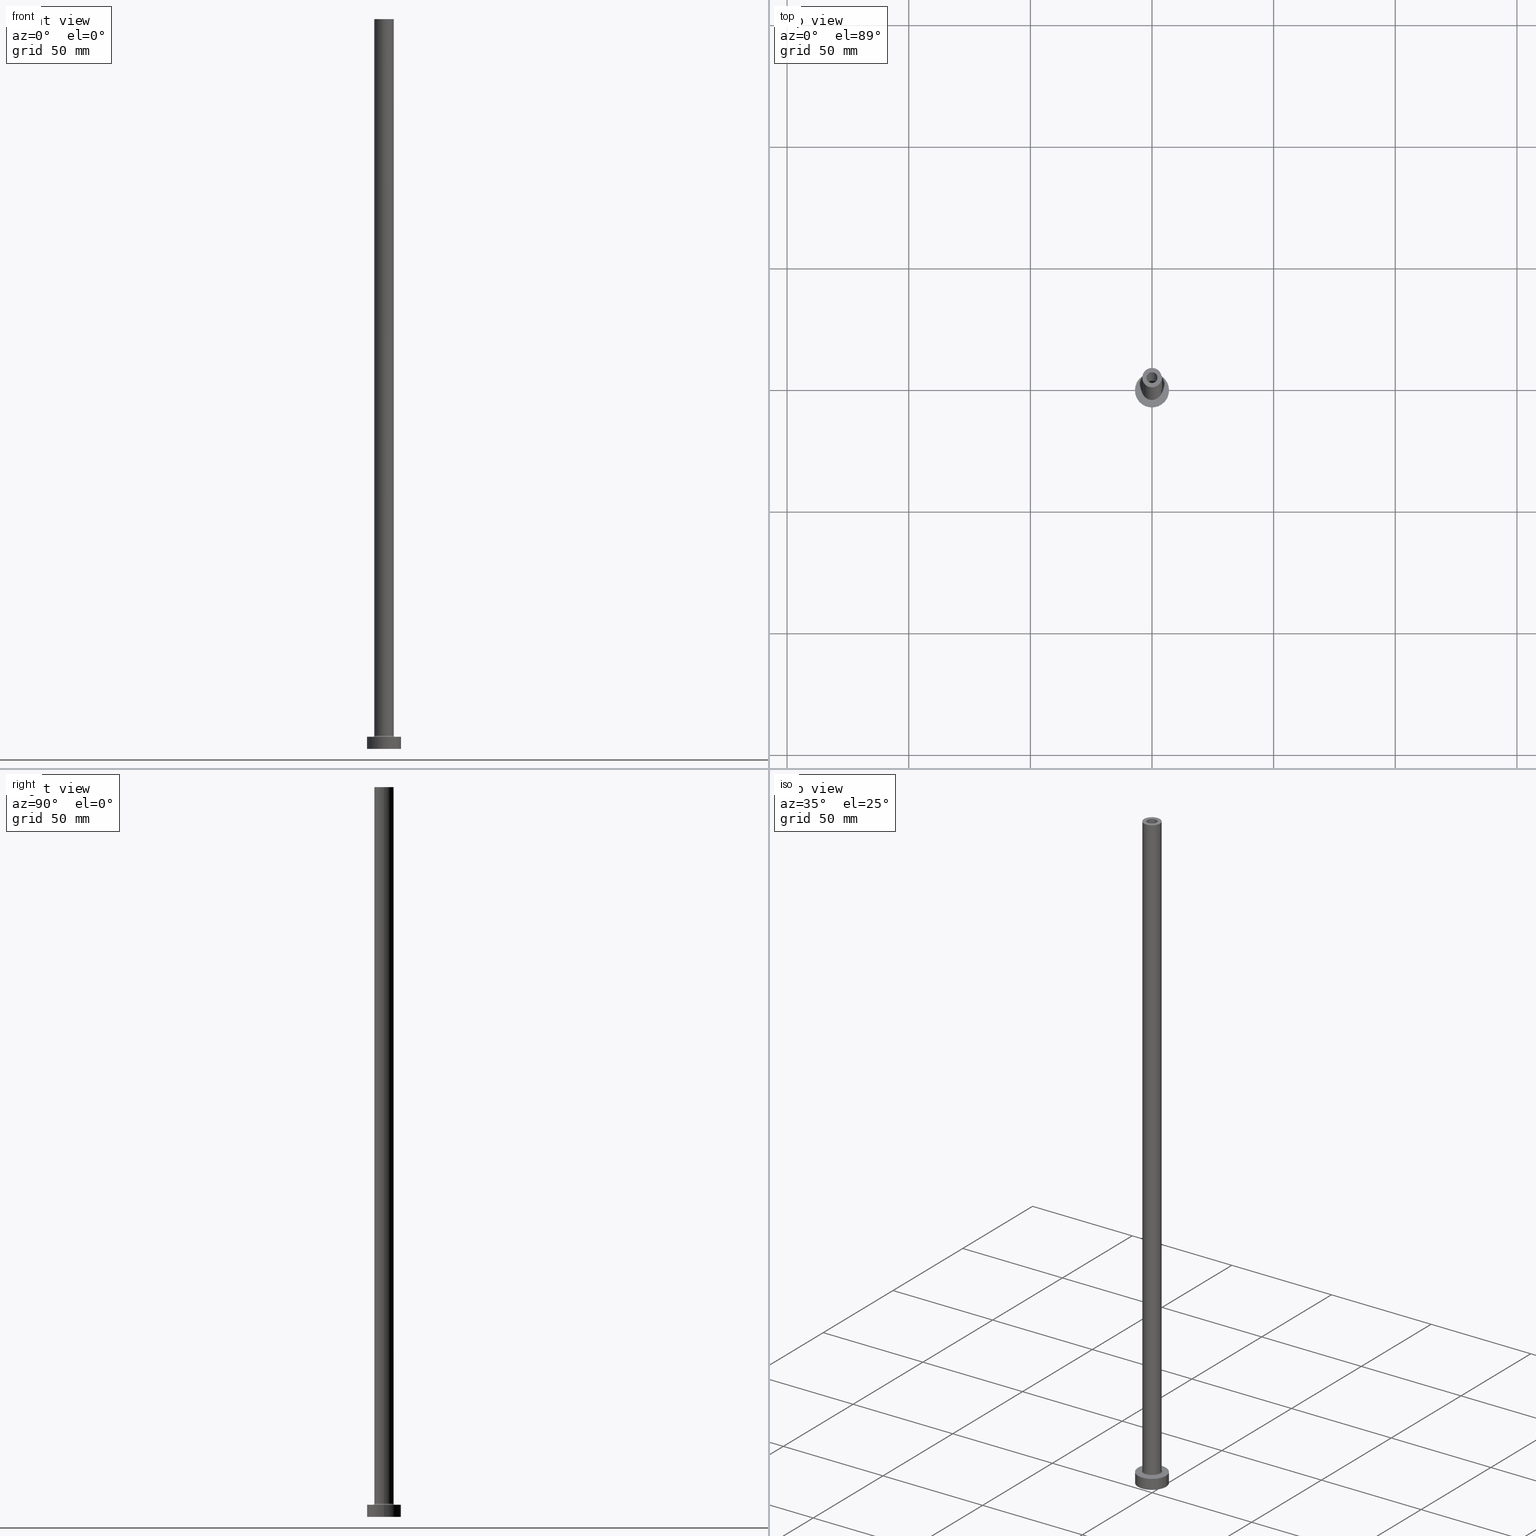
[diagram: canonical four-view strip — front | top / right | iso, engineering-drawing reading convention]
A machine part, canonical four-view strip (front | top / right | iso — engineering-drawing reading convention). The complete STEP part file that produces these views, byte-faithful:
ISO-10303-21;
HEADER;
FILE_DESCRIPTION (( 'STEP AP203' ),
    '1' );
FILE_NAME ('ff19.STEP',
    '2023-02-13T17:21:45',
    ( '' ),
    ( '' ),
    'SwSTEP 2.0',
    'SolidWorks 2019',
    '' );
FILE_SCHEMA (( 'CONFIG_CONTROL_DESIGN' ));
ENDSEC;

DATA;
#1 = FACE_BOUND ( 'NONE', #367, .T. ) ;
#2 = CARTESIAN_POINT ( 'NONE',  ( -2.250000000000000000, 0.000000000000000000, 300.0000000000000000 ) ) ;
#3 = AXIS2_PLACEMENT_3D ( 'NONE', #88, #458, #445 ) ;
#4 = LOCAL_TIME ( 18, 21, 45.00000000000000000, #95 ) ;
#5 = DIRECTION ( 'NONE',  ( 0.000000000000000000, 0.000000000000000000, 1.000000000000000000 ) ) ;
#6 = VERTEX_POINT ( 'NONE', #293 ) ;
#7 = CIRCLE ( 'NONE', #152, 2.250000000000000000 ) ;
#8 = ORIENTED_EDGE ( 'NONE', *, *, #148, .T. ) ;
#9 = DIRECTION ( 'NONE',  ( -0.000000000000000000, -0.000000000000000000, -1.000000000000000000 ) ) ;
#10 = CARTESIAN_POINT ( 'NONE',  ( -7.000000000000000000, 0.000000000000000000, 5.000000000000000000 ) ) ;
#11 = ADVANCED_BREP_SHAPE_REPRESENTATION ( 'ff19', ( #269, #397 ), #284 ) ;
#12 = AXIS2_PLACEMENT_3D ( 'NONE', #305, #61, #203 ) ;
#13 = APPROVAL_PERSON_ORGANIZATION ( #65, #251, #412 ) ;
#14 = VERTEX_POINT ( 'NONE', #120 ) ;
#15 = DIRECTION ( 'NONE',  ( -0.000000000000000000, -0.000000000000000000, -1.000000000000000000 ) ) ;
#16 = CC_DESIGN_PERSON_AND_ORGANIZATION_ASSIGNMENT ( #298, #447, ( #322 ) ) ;
#17 = DIRECTION ( 'NONE',  ( 1.000000000000000000, 0.000000000000000000, 0.000000000000000000 ) ) ;
#18 = CALENDAR_DATE ( 2023, 13, 2 ) ;
#19 = CARTESIAN_POINT ( 'NONE',  ( 0.000000000000000000, 0.000000000000000000, 261.7882250993908428 ) ) ;
#20 = ORIENTED_EDGE ( 'NONE', *, *, #375, .F. ) ;
#21 = DATE_AND_TIME ( #384, #146 ) ;
#22 = CARTESIAN_POINT ( 'NONE',  ( 4.500000000000000888, 0.000000000000000000, 5.000000000000002665 ) ) ;
#23 = AXIS2_PLACEMENT_3D ( 'NONE', #204, #126, #360 ) ;
#24 = DIRECTION ( 'NONE',  ( 0.000000000000000000, 0.000000000000000000, 1.000000000000000000 ) ) ;
#25 = DIRECTION ( 'NONE',  ( 0.000000000000000000, 0.000000000000000000, 1.000000000000000000 ) ) ;
#26 = ORIENTED_EDGE ( 'NONE', *, *, #112, .T. ) ;
#27 = ADVANCED_FACE ( 'NONE', ( #255, #404 ), #225, .F. ) ;
#28 = PERSON_AND_ORGANIZATION_ROLE ( 'creator' ) ;
#29 = ORIENTED_EDGE ( 'NONE', *, *, #200, .F. ) ;
#30 = DIRECTION ( 'NONE',  ( -0.000000000000000000, -0.000000000000000000, -1.000000000000000000 ) ) ;
#31 = FACE_OUTER_BOUND ( 'NONE', #461, .T. ) ;
#32 = AXIS2_PLACEMENT_3D ( 'NONE', #358, #137, #307 ) ;
#33 = ORIENTED_EDGE ( 'NONE', *, *, #349, .T. ) ;
#34 = DIRECTION ( 'NONE',  ( 1.000000000000000000, 0.000000000000000000, 0.000000000000000000 ) ) ;
#35 = EDGE_CURVE ( 'NONE', #446, #67, #281, .T. ) ;
#36 = DIRECTION ( 'NONE',  ( 1.000000000000000000, 0.000000000000000000, 0.000000000000000000 ) ) ;
#37 = EDGE_LOOP ( 'NONE', ( #406, #398 ) ) ;
#38 = DIRECTION ( 'NONE',  ( 1.000000000000000000, 0.000000000000000000, 0.000000000000000000 ) ) ;
#39 = EDGE_LOOP ( 'NONE', ( #258, #239, #219, #423 ) ) ;
#40 = CYLINDRICAL_SURFACE ( 'NONE', #437, 2.399999999999999911 ) ;
#41 = APPROVAL ( #226, 'NEUR�EN�' ) ;
#42 = AXIS2_PLACEMENT_3D ( 'NONE', #324, #5, #71 ) ;
#43 = ORIENTED_EDGE ( 'NONE', *, *, #165, .T. ) ;
#44 = PRODUCT_DEFINITION_SHAPE ( 'NONE', 'NONE',  #322 ) ;
#45 = ORIENTED_EDGE ( 'NONE', *, *, #278, .F. ) ;
#46 = PERSON_AND_ORGANIZATION ( #249, #304 ) ;
#47 = ADVANCED_FACE ( 'NONE', ( #383 ), #40, .F. ) ;
#48 = DIRECTION ( 'NONE',  ( 0.000000000000000000, 0.000000000000000000, 1.000000000000000000 ) ) ;
#49 = CIRCLE ( 'NONE', #430, 7.000000000000000000 ) ;
#50 = DIRECTION ( 'NONE',  ( 1.000000000000000000, 0.000000000000000000, 0.000000000000000000 ) ) ;
#51 = VERTEX_POINT ( 'NONE', #410 ) ;
#52 = ADVANCED_FACE ( 'NONE', ( #121 ), #201, .F. ) ;
#53 = DIRECTION ( 'NONE',  ( -1.000000000000000000, 0.000000000000000000, 0.000000000000000000 ) ) ;
#54 = DIRECTION ( 'NONE',  ( 0.000000000000000000, 0.000000000000000000, 1.000000000000000000 ) ) ;
#55 = ORIENTED_EDGE ( 'NONE', *, *, #192, .F. ) ;
#56 = CC_DESIGN_PERSON_AND_ORGANIZATION_ASSIGNMENT ( #46, #28, ( #295 ) ) ;
#57 = VECTOR ( 'NONE', #240, 1000.000000000000000 ) ;
#58 = AXIS2_PLACEMENT_3D ( 'NONE', #215, #147, #208 ) ;
#59 = VERTEX_POINT ( 'NONE', #10 ) ;
#60 = DIRECTION ( 'NONE',  ( 0.000000000000000000, 0.000000000000000000, -1.000000000000000000 ) ) ;
#61 = DIRECTION ( 'NONE',  ( -0.000000000000000000, -0.000000000000000000, -1.000000000000000000 ) ) ;
#62 = CIRCLE ( 'NONE', #420, 2.399999999999999911 ) ;
#63 = AXIS2_PLACEMENT_3D ( 'NONE', #460, #276, #442 ) ;
#64 = EDGE_CURVE ( 'NONE', #242, #429, #282, .T. ) ;
#65 = PERSON_AND_ORGANIZATION ( #249, #304 ) ;
#66 = CARTESIAN_POINT ( 'NONE',  ( -4.500000000000000888, 5.510910596163089556E-16, 5.500000000000005329 ) ) ;
#67 = VERTEX_POINT ( 'NONE', #238 ) ;
#68 = DIRECTION ( 'NONE',  ( 0.000000000000000000, 0.000000000000000000, -1.000000000000000000 ) ) ;
#69 = DIRECTION ( 'NONE',  ( 0.000000000000000000, 0.000000000000000000, -1.000000000000000000 ) ) ;
#70 = DIRECTION ( 'NONE',  ( -1.000000000000000000, 0.000000000000000000, 0.000000000000000000 ) ) ;
#71 = DIRECTION ( 'NONE',  ( 1.000000000000000000, 0.000000000000000000, 0.000000000000000000 ) ) ;
#72 = CIRCLE ( 'NONE', #172, 2.250000000000000000 ) ;
#73 = DIRECTION ( 'NONE',  ( 0.000000000000000000, 0.000000000000000000, 1.000000000000000000 ) ) ;
#74 = ORIENTED_EDGE ( 'NONE', *, *, #93, .F. ) ;
#75 = DIRECTION ( 'NONE',  ( 1.000000000000000000, 0.000000000000000000, 0.000000000000000000 ) ) ;
#76 = EDGE_CURVE ( 'NONE', #67, #6, #378, .T. ) ;
#77 = ORIENTED_EDGE ( 'NONE', *, *, #256, .F. ) ;
#78 = ORIENTED_EDGE ( 'NONE', *, *, #127, .F. ) ;
#79 = FACE_OUTER_BOUND ( 'NONE', #433, .T. ) ;
#80 = AXIS2_PLACEMENT_3D ( 'NONE', #247, #48, #399 ) ;
#81 = EDGE_LOOP ( 'NONE', ( #139, #426, #277, #113 ) ) ;
#82 = CALENDAR_DATE ( 2023, 13, 2 ) ;
#83 = AXIS2_PLACEMENT_3D ( 'NONE', #299, #157, #381 ) ;
#84 = CC_DESIGN_APPROVAL ( #436, ( #295 ) ) ;
#85 = VERTEX_POINT ( 'NONE', #133 ) ;
#86 = CARTESIAN_POINT ( 'NONE',  ( 0.000000000000000000, 0.000000000000000000, 0.000000000000000000 ) ) ;
#87 = DIRECTION ( 'NONE',  ( 1.000000000000000000, 0.000000000000000000, -0.000000000000000000 ) ) ;
#88 = CARTESIAN_POINT ( 'NONE',  ( 0.000000000000000000, 0.000000000000000000, 5.500000000000005329 ) ) ;
#89 = VERTEX_POINT ( 'NONE', #418 ) ;
#90 = VECTOR ( 'NONE', #9, 1000.000000000000000 ) ;
#91 = FACE_BOUND ( 'NONE', #156, .T. ) ;
#92 = VERTEX_POINT ( 'NONE', #177 ) ;
#93 = EDGE_CURVE ( 'NONE', #89, #333, #438, .T. ) ;
#94 = ORIENTED_EDGE ( 'NONE', *, *, #35, .T. ) ;
#95 = COORDINATED_UNIVERSAL_TIME_OFFSET ( 1, 0, .AHEAD. ) ;
#96 = CIRCLE ( 'NONE', #12, 2.399999999999999911 ) ;
#97 = APPROVAL_PERSON_ORGANIZATION ( #400, #436, #394 ) ;
#98 = DIRECTION ( 'NONE',  ( 1.000000000000000000, 0.000000000000000000, 0.000000000000000000 ) ) ;
#99 = ORIENTED_EDGE ( 'NONE', *, *, #128, .T. ) ;
#100 = LINE ( 'NONE', #283, #270 ) ;
#101 = ORIENTED_EDGE ( 'NONE', *, *, #328, .F. ) ;
#102 = COORDINATED_UNIVERSAL_TIME_OFFSET ( 1, 0, .AHEAD. ) ;
#103 = CC_DESIGN_DATE_AND_TIME_ASSIGNMENT ( #21, #300, ( #331 ) ) ;
#104 = CARTESIAN_POINT ( 'NONE',  ( 0.000000000000000000, 0.000000000000000000, 5.000000000000000000 ) ) ;
#105 = CARTESIAN_POINT ( 'NONE',  ( 0.000000000000000000, 0.000000000000000000, 5.000000000000000000 ) ) ;
#106 = CYLINDRICAL_SURFACE ( 'NONE', #302, 2.250000000000000000 ) ;
#107 = AXIS2_PLACEMENT_3D ( 'NONE', #19, #60, #230 ) ;
#108 = DIRECTION ( 'NONE',  ( 1.000000000000000000, 0.000000000000000000, 0.000000000000000000 ) ) ;
#109 = EDGE_LOOP ( 'NONE', ( #178, #233, #267, #229 ) ) ;
#110 = DIRECTION ( 'NONE',  ( 0.000000000000000000, 0.000000000000000000, -1.000000000000000000 ) ) ;
#111 = ORIENTED_EDGE ( 'NONE', *, *, #248, .T. ) ;
#112 = EDGE_CURVE ( 'NONE', #6, #67, #7, .T. ) ;
#113 = ORIENTED_EDGE ( 'NONE', *, *, #162, .F. ) ;
#114 = CIRCLE ( 'NONE', #209, 2.250000000000000000 ) ;
#115 = AXIS2_PLACEMENT_3D ( 'NONE', #368, #15, #53 ) ;
#116 = PLANE ( 'NONE',  #80 ) ;
#117 = FACE_OUTER_BOUND ( 'NONE', #312, .T. ) ;
#118 = LOCAL_TIME ( 18, 21, 45.00000000000000000, #198 ) ;
#119 = ADVANCED_FACE ( 'NONE', ( #145 ), #285, .T. ) ;
#120 = CARTESIAN_POINT ( 'NONE',  ( 7.000000000000000000, 8.572527594031473190E-16, 5.000000000000000000 ) ) ;
#121 = FACE_OUTER_BOUND ( 'NONE', #109, .T. ) ;
#122 = CYLINDRICAL_SURFACE ( 'NONE', #294, 4.000000000000000000 ) ;
#123 = ORIENTED_EDGE ( 'NONE', *, *, #187, .F. ) ;
#124 = CIRCLE ( 'NONE', #369, 2.399999999999999911 ) ;
#125 = CARTESIAN_POINT ( 'NONE',  ( 0.000000000000000000, 0.000000000000000000, 5.000000000000000000 ) ) ;
#126 = DIRECTION ( 'NONE',  ( 0.000000000000000000, 0.000000000000000000, 1.000000000000000000 ) ) ;
#127 = EDGE_CURVE ( 'NONE', #150, #446, #72, .T. ) ;
#128 = EDGE_CURVE ( 'NONE', #333, #318, #289, .T. ) ;
#129 = PERSON_AND_ORGANIZATION ( #249, #304 ) ;
#130 = CARTESIAN_POINT ( 'NONE',  ( 0.000000000000000000, 0.000000000000000000, 0.000000000000000000 ) ) ;
#131 = ORIENTED_EDGE ( 'NONE', *, *, #377, .T. ) ;
#132 = COORDINATED_UNIVERSAL_TIME_OFFSET ( 1, 0, .AHEAD. ) ;
#133 = CARTESIAN_POINT ( 'NONE',  ( 2.399999999999999911, 2.939152317953647106E-16, 0.000000000000000000 ) ) ;
#134 = ORIENTED_EDGE ( 'NONE', *, *, #35, .F. ) ;
#135 = PLANE ( 'NONE',  #253 ) ;
#136 = AXIS2_PLACEMENT_3D ( 'NONE', #425, #347, #36 ) ;
#137 = DIRECTION ( 'NONE',  ( -0.000000000000000000, -0.000000000000000000, -1.000000000000000000 ) ) ;
#138 = ORIENTED_EDGE ( 'NONE', *, *, #328, .T. ) ;
#139 = ORIENTED_EDGE ( 'NONE', *, *, #335, .F. ) ;
#140 = ADVANCED_FACE ( 'NONE', ( #245, #186 ), #116, .T. ) ;
#141 = CARTESIAN_POINT ( 'NONE',  ( 0.000000000000000000, 0.000000000000000000, 300.0000000000000000 ) ) ;
#142 = ORIENTED_EDGE ( 'NONE', *, *, #375, .T. ) ;
#143 = DIRECTION ( 'NONE',  ( 0.000000000000000000, 0.000000000000000000, 1.000000000000000000 ) ) ;
#144 = AXIS2_PLACEMENT_3D ( 'NONE', #352, #411, #296 ) ;
#145 = FACE_OUTER_BOUND ( 'NONE', #39, .T. ) ;
#146 = LOCAL_TIME ( 18, 21, 45.00000000000000000, #132 ) ;
#147 = DIRECTION ( 'NONE',  ( 0.000000000000000000, 0.000000000000000000, 1.000000000000000000 ) ) ;
#148 = EDGE_CURVE ( 'NONE', #429, #242, #338, .T. ) ;
#149 = ORIENTED_EDGE ( 'NONE', *, *, #182, .F. ) ;
#150 = VERTEX_POINT ( 'NONE', #350 ) ;
#151 = PRODUCT_RELATED_PRODUCT_CATEGORY ( 'detail', '', ( #189 ) ) ;
#152 = AXIS2_PLACEMENT_3D ( 'NONE', #205, #456, #108 ) ;
#153 = AXIS2_PLACEMENT_3D ( 'NONE', #271, #241, #173 ) ;
#154 = CC_DESIGN_SECURITY_CLASSIFICATION ( #331, ( #295 ) ) ;
#155 = EDGE_CURVE ( 'NONE', #89, #92, #195, .T. ) ;
#156 = EDGE_LOOP ( 'NONE', ( #246, #101 ) ) ;
#157 = DIRECTION ( 'NONE',  ( 0.000000000000000000, -1.000000000000000000, 0.000000000000000000 ) ) ;
#158 = FACE_OUTER_BOUND ( 'NONE', #81, .T. ) ;
#159 = APPROVAL_DATE_TIME ( #170, #41 ) ;
#160 = ORIENTED_EDGE ( 'NONE', *, *, #373, .T. ) ;
#161 = CALENDAR_DATE ( 2023, 13, 2 ) ;
#162 = EDGE_CURVE ( 'NONE', #393, #89, #274, .T. ) ;
#163 = CLOSED_SHELL ( 'NONE', ( #452, #47, #52, #292, #439, #455, #140, #234, #119, #343, #391, #303, #27, #332 ) ) ;
#164 = CARTESIAN_POINT ( 'NONE',  ( -2.399999999999999911, 0.000000000000000000, 255.0000000000000000 ) ) ;
#165 = EDGE_CURVE ( 'NONE', #92, #318, #356, .T. ) ;
#166 = CYLINDRICAL_SURFACE ( 'NONE', #107, 2.399999999999999911 ) ;
#167 = EDGE_LOOP ( 'NONE', ( #351, #217, #169, #134 ) ) ;
#168 = PERSON_AND_ORGANIZATION_ROLE ( 'design_owner' ) ;
#169 = ORIENTED_EDGE ( 'NONE', *, *, #76, .F. ) ;
#170 = DATE_AND_TIME ( #18, #4 ) ;
#171 = DIRECTION ( 'NONE',  ( 1.000000000000000000, 0.000000000000000000, 0.000000000000000000 ) ) ;
#172 = AXIS2_PLACEMENT_3D ( 'NONE', #386, #25, #272 ) ;
#173 = DIRECTION ( 'NONE',  ( 1.000000000000000000, 0.000000000000000000, 0.000000000000000000 ) ) ;
#174 = CIRCLE ( 'NONE', #364, 4.000000000000000000 ) ;
#175 = ORIENTED_EDGE ( 'NONE', *, *, #200, .T. ) ;
#176 = FACE_OUTER_BOUND ( 'NONE', #167, .T. ) ;
#177 = CARTESIAN_POINT ( 'NONE',  ( 4.000000000000000000, 4.898587196589412829E-16, 5.500000000000005329 ) ) ;
#178 = ORIENTED_EDGE ( 'NONE', *, *, #155, .F. ) ;
#179 = LINE ( 'NONE', #422, #222 ) ;
#180 = CIRCLE ( 'NONE', #188, 2.399999999999999911 ) ;
#181 = VECTOR ( 'NONE', #315, 1000.000000000000000 ) ;
#182 = EDGE_CURVE ( 'NONE', #252, #51, #268, .T. ) ;
#183 = CARTESIAN_POINT ( 'NONE',  ( 0.000000000000000000, 0.000000000000000000, 300.0000000000000000 ) ) ;
#184 = ORIENTED_EDGE ( 'NONE', *, *, #64, .T. ) ;
#185 = CC_DESIGN_PERSON_AND_ORGANIZATION_ASSIGNMENT ( #353, #314, ( #331 ) ) ;
#186 = FACE_OUTER_BOUND ( 'NONE', #37, .T. ) ;
#187 = EDGE_CURVE ( 'NONE', #14, #59, #409, .T. ) ;
#188 = AXIS2_PLACEMENT_3D ( 'NONE', #196, #262, #264 ) ;
#189 = PRODUCT ( 'ff19', 'ff19', '', ( #291 ) ) ;
#190 =( NAMED_UNIT ( * ) PLANE_ANGLE_UNIT ( ) SI_UNIT ( $, .RADIAN. ) );
#191 = VERTEX_POINT ( 'NONE', #297 ) ;
#192 = EDGE_CURVE ( 'NONE', #446, #150, #114, .T. ) ;
#193 = DIRECTION ( 'NONE',  ( 1.000000000000000000, 0.000000000000000000, -0.000000000000000000 ) ) ;
#194 = DIRECTION ( 'NONE',  ( 1.000000000000000000, 0.000000000000000000, 0.000000000000000000 ) ) ;
#195 = CIRCLE ( 'NONE', #3, 4.000000000000000000 ) ;
#196 = CARTESIAN_POINT ( 'NONE',  ( 0.000000000000000000, 0.000000000000000000, 255.0000000000000000 ) ) ;
#197 = FACE_OUTER_BOUND ( 'NONE', #457, .T. ) ;
#198 = COORDINATED_UNIVERSAL_TIME_OFFSET ( 1, 0, .AHEAD. ) ;
#199 = DIRECTION ( 'NONE',  ( -0.000000000000000000, -0.000000000000000000, -1.000000000000000000 ) ) ;
#200 = EDGE_CURVE ( 'NONE', #14, #242, #213, .T. ) ;
#201 = TOROIDAL_SURFACE ( 'NONE', #23, 4.500000000000000888, 0.5000000000000000000 ) ;
#202 = CIRCLE ( 'NONE', #42, 4.000000000000000000 ) ;
#203 = DIRECTION ( 'NONE',  ( 1.000000000000000000, 0.000000000000000000, 0.000000000000000000 ) ) ;
#204 = CARTESIAN_POINT ( 'NONE',  ( 0.000000000000000000, 0.000000000000000000, 5.500000000000005329 ) ) ;
#205 = CARTESIAN_POINT ( 'NONE',  ( 0.000000000000000000, 0.000000000000000000, 255.0000000000000000 ) ) ;
#206 = ORIENTED_EDGE ( 'NONE', *, *, #112, .F. ) ;
#207 = APPROVAL_ROLE ( '' ) ;
#208 = DIRECTION ( 'NONE',  ( 1.000000000000000000, 0.000000000000000000, 0.000000000000000000 ) ) ;
#209 = AXIS2_PLACEMENT_3D ( 'NONE', #231, #336, #75 ) ;
#210 = CARTESIAN_POINT ( 'NONE',  ( -2.250000000000000000, 0.000000000000000000, 300.0000000000000000 ) ) ;
#211 = DIRECTION ( 'NONE',  ( -0.000000000000000000, -0.000000000000000000, -1.000000000000000000 ) ) ;
#212 = VERTEX_POINT ( 'NONE', #319 ) ;
#213 = LINE ( 'NONE', #354, #330 ) ;
#214 = ORIENTED_EDGE ( 'NONE', *, *, #335, .T. ) ;
#215 = CARTESIAN_POINT ( 'NONE',  ( 0.000000000000000000, 0.000000000000000000, 5.500000000000005329 ) ) ;
#216 = CARTESIAN_POINT ( 'NONE',  ( -7.000000000000000000, 0.000000000000000000, 0.000000000000000000 ) ) ;
#217 = ORIENTED_EDGE ( 'NONE', *, *, #256, .T. ) ;
#218 = APPROVAL_DATE_TIME ( #321, #436 ) ;
#219 = ORIENTED_EDGE ( 'NONE', *, *, #162, .T. ) ;
#220 = EDGE_CURVE ( 'NONE', #51, #85, #124, .T. ) ;
#221 = CARTESIAN_POINT ( 'NONE',  ( 0.000000000000000000, 0.000000000000000000, 0.000000000000000000 ) ) ;
#222 = VECTOR ( 'NONE', #69, 1000.000000000000000 ) ;
#223 = CARTESIAN_POINT ( 'NONE',  ( -4.000000000000000000, 0.000000000000000000, 300.0000000000000000 ) ) ;
#224 = CYLINDRICAL_SURFACE ( 'NONE', #115, 7.000000000000000000 ) ;
#225 = PLANE ( 'NONE',  #323 ) ;
#226 = APPROVAL_STATUS ( 'not_yet_approved' ) ;
#227 = CC_DESIGN_APPROVAL ( #251, ( #331 ) ) ;
#228 = DIRECTION ( 'NONE',  ( -1.000000000000000000, 0.000000000000000000, 0.000000000000000000 ) ) ;
#229 = ORIENTED_EDGE ( 'NONE', *, *, #165, .F. ) ;
#230 = DIRECTION ( 'NONE',  ( -1.000000000000000000, 0.000000000000000000, 0.000000000000000000 ) ) ;
#231 = CARTESIAN_POINT ( 'NONE',  ( 0.000000000000000000, 0.000000000000000000, 300.0000000000000000 ) ) ;
#232 = CIRCLE ( 'NONE', #389, 4.000000000000000000 ) ;
#233 = ORIENTED_EDGE ( 'NONE', *, *, #93, .T. ) ;
#234 = ADVANCED_FACE ( 'NONE', ( #91, #449 ), #376, .F. ) ;
#235 = APPROVAL_DATE_TIME ( #453, #251 ) ;
#236 = CARTESIAN_POINT ( 'NONE',  ( 0.000000000000000000, 0.000000000000000000, 300.0000000000000000 ) ) ;
#237 = DIRECTION ( 'NONE',  ( -1.000000000000000000, 0.000000000000000000, 0.000000000000000000 ) ) ;
#238 = CARTESIAN_POINT ( 'NONE',  ( -2.250000000000000000, 0.000000000000000000, 255.0000000000000000 ) ) ;
#239 = ORIENTED_EDGE ( 'NONE', *, *, #414, .F. ) ;
#240 = DIRECTION ( 'NONE',  ( 0.000000000000000000, 0.000000000000000000, -1.000000000000000000 ) ) ;
#241 = DIRECTION ( 'NONE',  ( -0.000000000000000000, -0.000000000000000000, -1.000000000000000000 ) ) ;
#242 = VERTEX_POINT ( 'NONE', #311 ) ;
#243 = CARTESIAN_POINT ( 'NONE',  ( 0.000000000000000000, 0.000000000000000000, 255.0000000000000000 ) ) ;
#244 = AXIS2_PLACEMENT_3D ( 'NONE', #130, #416, #87 ) ;
#245 = FACE_BOUND ( 'NONE', #454, .T. ) ;
#246 = ORIENTED_EDGE ( 'NONE', *, *, #220, .F. ) ;
#247 = CARTESIAN_POINT ( 'NONE',  ( 0.000000000000000000, 0.000000000000000000, 5.000000000000000000 ) ) ;
#248 = EDGE_CURVE ( 'NONE', #212, #252, #180, .T. ) ;
#249 = PERSON ( 'NEUR�EN�', 'NEUR�EN�', 'NEUR�EN�', ('NEUR�EN�'), ('NEUR�EN�'), ('NEUR�EN�') ) ;
#250 = DIRECTION ( 'NONE',  ( 0.000000000000000000, 0.000000000000000000, 1.000000000000000000 ) ) ;
#251 = APPROVAL ( #415, 'NEUR�EN�' ) ;
#252 = VERTEX_POINT ( 'NONE', #164 ) ;
#253 = AXIS2_PLACEMENT_3D ( 'NONE', #141, #424, #357 ) ;
#254 = APPROVAL_PERSON_ORGANIZATION ( #407, #41, #207 ) ;
#255 = FACE_BOUND ( 'NONE', #372, .T. ) ;
#256 = EDGE_CURVE ( 'NONE', #150, #6, #451, .T. ) ;
#257 = CC_DESIGN_PERSON_AND_ORGANIZATION_ASSIGNMENT ( #129, #310, ( #295 ) ) ;
#258 = ORIENTED_EDGE ( 'NONE', *, *, #435, .F. ) ;
#259 = ORIENTED_EDGE ( 'NONE', *, *, #148, .F. ) ;
#260 = VECTOR ( 'NONE', #68, 1000.000000000000000 ) ;
#261 = CARTESIAN_POINT ( 'NONE',  ( -2.399999999999999911, 0.000000000000000000, 261.7882250993908428 ) ) ;
#262 = DIRECTION ( 'NONE',  ( 0.000000000000000000, 0.000000000000000000, 1.000000000000000000 ) ) ;
#263 = COORDINATED_UNIVERSAL_TIME_OFFSET ( 1, 0, .AHEAD. ) ;
#264 = DIRECTION ( 'NONE',  ( 1.000000000000000000, 0.000000000000000000, 0.000000000000000000 ) ) ;
#265 = CALENDAR_DATE ( 2023, 13, 2 ) ;
#266 = CARTESIAN_POINT ( 'NONE',  ( 0.000000000000000000, 0.000000000000000000, 0.000000000000000000 ) ) ;
#267 = ORIENTED_EDGE ( 'NONE', *, *, #373, .F. ) ;
#268 = LINE ( 'NONE', #261, #260 ) ;
#269 = MANIFOLD_SOLID_BREP ( 'Odebrat vysunut�m4', #163 ) ;
#270 = VECTOR ( 'NONE', #392, 1000.000000000000000 ) ;
#271 = CARTESIAN_POINT ( 'NONE',  ( 0.000000000000000000, 0.000000000000000000, 5.000000000000000000 ) ) ;
#272 = DIRECTION ( 'NONE',  ( 1.000000000000000000, 0.000000000000000000, 0.000000000000000000 ) ) ;
#273 = ORIENTED_EDGE ( 'NONE', *, *, #64, .F. ) ;
#274 = LINE ( 'NONE', #223, #90 ) ;
#275 = DIRECTION ( 'NONE',  ( 1.000000000000000000, 0.000000000000000000, 0.000000000000000000 ) ) ;
#276 = DIRECTION ( 'NONE',  ( 0.000000000000000000, 0.000000000000000000, -1.000000000000000000 ) ) ;
#277 = ORIENTED_EDGE ( 'NONE', *, *, #427, .T. ) ;
#278 = EDGE_CURVE ( 'NONE', #59, #14, #49, .T. ) ;
#279 = DIRECTION ( 'NONE',  ( -1.000000000000000000, 0.000000000000000000, 0.000000000000000000 ) ) ;
#280 = DIRECTION ( 'NONE',  ( 1.224646799147353207E-16, 1.000000000000000000, -0.000000000000000000 ) ) ;
#281 = LINE ( 'NONE', #2, #57 ) ;
#282 = CIRCLE ( 'NONE', #313, 7.000000000000000000 ) ;
#283 = CARTESIAN_POINT ( 'NONE',  ( -7.000000000000000000, 0.000000000000000000, 5.000000000000000000 ) ) ;
#284 =( GEOMETRIC_REPRESENTATION_CONTEXT ( 3 ) GLOBAL_UNCERTAINTY_ASSIGNED_CONTEXT ( ( #395 ) ) GLOBAL_UNIT_ASSIGNED_CONTEXT ( ( #401, #190, #370 ) ) REPRESENTATION_CONTEXT ( 'NONE', 'WORKASPACE' ) );
#285 = CYLINDRICAL_SURFACE ( 'NONE', #32, 4.000000000000000000 ) ;
#286 = EDGE_LOOP ( 'NONE', ( #259, #273 ) ) ;
#287 = CARTESIAN_POINT ( 'NONE',  ( 4.000000000000000000, 4.898587196589412829E-16, 300.0000000000000000 ) ) ;
#288 = ORIENTED_EDGE ( 'NONE', *, *, #220, .T. ) ;
#289 = CIRCLE ( 'NONE', #388, 4.500000000000000888 ) ;
#290 = DIRECTION ( 'NONE',  ( -0.000000000000000000, -0.000000000000000000, -1.000000000000000000 ) ) ;
#291 = MECHANICAL_CONTEXT ( 'NONE', #341, 'mechanical' ) ;
#292 = ADVANCED_FACE ( 'NONE', ( #158 ), #122, .T. ) ;
#293 = CARTESIAN_POINT ( 'NONE',  ( 2.250000000000000000, 2.755455298081543792E-16, 255.0000000000000000 ) ) ;
#294 = AXIS2_PLACEMENT_3D ( 'NONE', #408, #199, #228 ) ;
#295 = PRODUCT_DEFINITION_FORMATION_WITH_SPECIFIED_SOURCE ( 'LIBOVOLN�', '', #189, .NOT_KNOWN. ) ;
#296 = DIRECTION ( 'NONE',  ( 1.000000000000000000, 0.000000000000000000, 0.000000000000000000 ) ) ;
#297 = CARTESIAN_POINT ( 'NONE',  ( 4.000000000000000000, 4.898587196589412829E-16, 300.0000000000000000 ) ) ;
#298 = PERSON_AND_ORGANIZATION ( #249, #304 ) ;
#299 = CARTESIAN_POINT ( 'NONE',  ( 4.500000000000000888, 0.000000000000000000, 5.500000000000005329 ) ) ;
#300 = DATE_TIME_ROLE ( 'classification_date' ) ;
#301 = DATE_AND_TIME ( #161, #118 ) ;
#302 = AXIS2_PLACEMENT_3D ( 'NONE', #183, #110, #279 ) ;
#303 = ADVANCED_FACE ( 'NONE', ( #197 ), #166, .F. ) ;
#304 = ORGANIZATION ( 'NEUR�EN�', 'NEUR�EN�', '' ) ;
#305 = CARTESIAN_POINT ( 'NONE',  ( 0.000000000000000000, 0.000000000000000000, 0.000000000000000000 ) ) ;
#306 = FACE_OUTER_BOUND ( 'NONE', #344, .T. ) ;
#307 = DIRECTION ( 'NONE',  ( -1.000000000000000000, 0.000000000000000000, 0.000000000000000000 ) ) ;
#308 = EDGE_LOOP ( 'NONE', ( #20, #374 ) ) ;
#309 = APPLICATION_PROTOCOL_DEFINITION ( 'international standard', 'config_control_design', 1994, #326 ) ;
#310 = PERSON_AND_ORGANIZATION_ROLE ( 'design_supplier' ) ;
#311 = CARTESIAN_POINT ( 'NONE',  ( 7.000000000000000000, 8.572527594031473190E-16, 0.000000000000000000 ) ) ;
#312 = EDGE_LOOP ( 'NONE', ( #29, #45, #131, #8 ) ) ;
#313 = AXIS2_PLACEMENT_3D ( 'NONE', #266, #73, #98 ) ;
#314 = PERSON_AND_ORGANIZATION_ROLE ( 'classification_officer' ) ;
#315 = DIRECTION ( 'NONE',  ( -0.000000000000000000, -0.000000000000000000, -1.000000000000000000 ) ) ;
#316 = EDGE_LOOP ( 'NONE', ( #123, #175, #184, #361 ) ) ;
#317 = CYLINDRICAL_SURFACE ( 'NONE', #63, 2.250000000000000000 ) ;
#318 = VERTEX_POINT ( 'NONE', #22 ) ;
#319 = CARTESIAN_POINT ( 'NONE',  ( 2.399999999999999911, 2.939152317953647106E-16, 255.0000000000000000 ) ) ;
#320 = ORIENTED_EDGE ( 'NONE', *, *, #182, .T. ) ;
#321 = DATE_AND_TIME ( #82, #379 ) ;
#322 = PRODUCT_DEFINITION ( 'NEZN�M�', '', #295, #419 ) ;
#323 = AXIS2_PLACEMENT_3D ( 'NONE', #371, #54, #193 ) ;
#324 = CARTESIAN_POINT ( 'NONE',  ( 0.000000000000000000, 0.000000000000000000, 5.500000000000005329 ) ) ;
#325 = AXIS2_PLACEMENT_3D ( 'NONE', #104, #365, #237 ) ;
#326 = APPLICATION_CONTEXT ( 'configuration controlled 3d designs of mechanical parts and assemblies' ) ;
#327 = CARTESIAN_POINT ( 'NONE',  ( 0.000000000000000000, 0.000000000000000000, 261.7882250993908428 ) ) ;
#328 = EDGE_CURVE ( 'NONE', #85, #51, #96, .T. ) ;
#329 = DATE_TIME_ROLE ( 'creation_date' ) ;
#330 = VECTOR ( 'NONE', #30, 1000.000000000000000 ) ;
#331 = SECURITY_CLASSIFICATION ( '', '', #450 ) ;
#332 = ADVANCED_FACE ( 'NONE', ( #306 ), #106, .F. ) ;
#333 = VERTEX_POINT ( 'NONE', #359 ) ;
#334 = APPLICATION_PROTOCOL_DEFINITION ( 'international standard', 'config_control_design', 1994, #341 ) ;
#335 = EDGE_CURVE ( 'NONE', #191, #393, #174, .T. ) ;
#336 = DIRECTION ( 'NONE',  ( 0.000000000000000000, 0.000000000000000000, 1.000000000000000000 ) ) ;
#337 = ORIENTED_EDGE ( 'NONE', *, *, #349, .F. ) ;
#338 = CIRCLE ( 'NONE', #396, 7.000000000000000000 ) ;
#339 = EDGE_LOOP ( 'NONE', ( #142, #33, #138, #149 ) ) ;
#340 = LOCAL_TIME ( 18, 21, 45.00000000000000000, #263 ) ;
#341 = APPLICATION_CONTEXT ( 'configuration controlled 3d designs of mechanical parts and assemblies' ) ;
#342 = CARTESIAN_POINT ( 'NONE',  ( 2.250000000000000000, 2.755455298081543792E-16, 300.0000000000000000 ) ) ;
#343 = ADVANCED_FACE ( 'NONE', ( #1, #31 ), #135, .T. ) ;
#344 = EDGE_LOOP ( 'NONE', ( #77, #363, #94, #206 ) ) ;
#345 = PERSON_AND_ORGANIZATION ( #249, #304 ) ;
#346 = CIRCLE ( 'NONE', #153, 4.500000000000000888 ) ;
#347 = DIRECTION ( 'NONE',  ( 0.000000000000000000, 0.000000000000000000, 1.000000000000000000 ) ) ;
#348 = ORIENTED_EDGE ( 'NONE', *, *, #76, .T. ) ;
#349 = EDGE_CURVE ( 'NONE', #212, #85, #179, .T. ) ;
#350 = CARTESIAN_POINT ( 'NONE',  ( 2.250000000000000000, 2.755455298081543792E-16, 300.0000000000000000 ) ) ;
#351 = ORIENTED_EDGE ( 'NONE', *, *, #192, .T. ) ;
#352 = CARTESIAN_POINT ( 'NONE',  ( 0.000000000000000000, 0.000000000000000000, 5.000000000000000000 ) ) ;
#353 = PERSON_AND_ORGANIZATION ( #249, #304 ) ;
#354 = CARTESIAN_POINT ( 'NONE',  ( 7.000000000000000000, 8.572527594031473190E-16, 5.000000000000000000 ) ) ;
#355 = LINE ( 'NONE', #287, #181 ) ;
#356 = CIRCLE ( 'NONE', #83, 0.5000000000000004441 ) ;
#357 = DIRECTION ( 'NONE',  ( 1.000000000000000000, 0.000000000000000000, -0.000000000000000000 ) ) ;
#358 = CARTESIAN_POINT ( 'NONE',  ( 0.000000000000000000, 0.000000000000000000, 300.0000000000000000 ) ) ;
#359 = CARTESIAN_POINT ( 'NONE',  ( -4.500000000000000888, 5.510910596163088569E-16, 5.000000000000002665 ) ) ;
#360 = DIRECTION ( 'NONE',  ( 1.000000000000000000, 0.000000000000000000, 0.000000000000000000 ) ) ;
#361 = ORIENTED_EDGE ( 'NONE', *, *, #377, .F. ) ;
#362 = CARTESIAN_POINT ( 'NONE',  ( -4.000000000000000000, 0.000000000000000000, 300.0000000000000000 ) ) ;
#363 = ORIENTED_EDGE ( 'NONE', *, *, #127, .T. ) ;
#364 = AXIS2_PLACEMENT_3D ( 'NONE', #385, #431, #275 ) ;
#365 = DIRECTION ( 'NONE',  ( -0.000000000000000000, -0.000000000000000000, -1.000000000000000000 ) ) ;
#366 = TOROIDAL_SURFACE ( 'NONE', #58, 4.500000000000000888, 0.5000000000000000000 ) ;
#367 = EDGE_LOOP ( 'NONE', ( #55, #78 ) ) ;
#368 = CARTESIAN_POINT ( 'NONE',  ( 0.000000000000000000, 0.000000000000000000, 5.000000000000000000 ) ) ;
#369 = AXIS2_PLACEMENT_3D ( 'NONE', #221, #290, #50 ) ;
#370 =( NAMED_UNIT ( * ) SI_UNIT ( $, .STERADIAN. ) SOLID_ANGLE_UNIT ( ) );
#371 = CARTESIAN_POINT ( 'NONE',  ( 0.000000000000000000, 0.000000000000000000, 255.0000000000000000 ) ) ;
#372 = EDGE_LOOP ( 'NONE', ( #348, #26 ) ) ;
#373 = EDGE_CURVE ( 'NONE', #318, #333, #346, .T. ) ;
#374 = ORIENTED_EDGE ( 'NONE', *, *, #248, .F. ) ;
#375 = EDGE_CURVE ( 'NONE', #252, #212, #62, .T. ) ;
#376 = PLANE ( 'NONE',  #244 ) ;
#377 = EDGE_CURVE ( 'NONE', #59, #429, #100, .T. ) ;
#378 = CIRCLE ( 'NONE', #136, 2.250000000000000000 ) ;
#379 = LOCAL_TIME ( 18, 21, 45.00000000000000000, #102 ) ;
#380 = ORIENTED_EDGE ( 'NONE', *, *, #128, .F. ) ;
#381 = DIRECTION ( 'NONE',  ( 0.000000000000000000, 0.000000000000000000, -1.000000000000000000 ) ) ;
#382 = APPROVAL_STATUS ( 'not_yet_approved' ) ;
#383 = FACE_OUTER_BOUND ( 'NONE', #339, .T. ) ;
#384 = CALENDAR_DATE ( 2023, 13, 2 ) ;
#385 = CARTESIAN_POINT ( 'NONE',  ( 0.000000000000000000, 0.000000000000000000, 300.0000000000000000 ) ) ;
#386 = CARTESIAN_POINT ( 'NONE',  ( 0.000000000000000000, 0.000000000000000000, 300.0000000000000000 ) ) ;
#387 = ORIENTED_EDGE ( 'NONE', *, *, #414, .T. ) ;
#388 = AXIS2_PLACEMENT_3D ( 'NONE', #105, #211, #34 ) ;
#389 = AXIS2_PLACEMENT_3D ( 'NONE', #236, #428, #38 ) ;
#390 = DIRECTION ( 'NONE',  ( 1.000000000000000000, 0.000000000000000000, 0.000000000000000000 ) ) ;
#391 = ADVANCED_FACE ( 'NONE', ( #79 ), #366, .F. ) ;
#392 = DIRECTION ( 'NONE',  ( -0.000000000000000000, -0.000000000000000000, -1.000000000000000000 ) ) ;
#393 = VERTEX_POINT ( 'NONE', #362 ) ;
#394 = APPROVAL_ROLE ( '' ) ;
#395 = UNCERTAINTY_MEASURE_WITH_UNIT (LENGTH_MEASURE( 1.000000000000000082E-05 ), #401, 'distance_accuracy_value', 'NONE');
#396 = AXIS2_PLACEMENT_3D ( 'NONE', #440, #405, #171 ) ;
#397 = AXIS2_PLACEMENT_3D ( 'NONE', #86, #250, #194 ) ;
#398 = ORIENTED_EDGE ( 'NONE', *, *, #187, .T. ) ;
#399 = DIRECTION ( 'NONE',  ( 1.000000000000000000, 0.000000000000000000, -0.000000000000000000 ) ) ;
#400 = PERSON_AND_ORGANIZATION ( #249, #304 ) ;
#401 =( LENGTH_UNIT ( ) NAMED_UNIT ( * ) SI_UNIT ( .MILLI., .METRE. ) );
#402 = AXIS2_PLACEMENT_3D ( 'NONE', #66, #280, #432 ) ;
#403 = CC_DESIGN_PERSON_AND_ORGANIZATION_ASSIGNMENT ( #345, #168, ( #189 ) ) ;
#404 = FACE_OUTER_BOUND ( 'NONE', #308, .T. ) ;
#405 = DIRECTION ( 'NONE',  ( 0.000000000000000000, 0.000000000000000000, 1.000000000000000000 ) ) ;
#406 = ORIENTED_EDGE ( 'NONE', *, *, #278, .T. ) ;
#407 = PERSON_AND_ORGANIZATION ( #249, #304 ) ;
#408 = CARTESIAN_POINT ( 'NONE',  ( 0.000000000000000000, 0.000000000000000000, 300.0000000000000000 ) ) ;
#409 = CIRCLE ( 'NONE', #144, 7.000000000000000000 ) ;
#410 = CARTESIAN_POINT ( 'NONE',  ( -2.399999999999999911, 0.000000000000000000, 0.000000000000000000 ) ) ;
#411 = DIRECTION ( 'NONE',  ( 0.000000000000000000, 0.000000000000000000, 1.000000000000000000 ) ) ;
#412 = APPROVAL_ROLE ( '' ) ;
#413 = DIRECTION ( 'NONE',  ( 0.000000000000000000, 0.000000000000000000, -1.000000000000000000 ) ) ;
#414 = EDGE_CURVE ( 'NONE', #393, #191, #232, .T. ) ;
#415 = APPROVAL_STATUS ( 'not_yet_approved' ) ;
#416 = DIRECTION ( 'NONE',  ( 0.000000000000000000, 0.000000000000000000, 1.000000000000000000 ) ) ;
#417 = CC_DESIGN_DATE_AND_TIME_ASSIGNMENT ( #301, #329, ( #322 ) ) ;
#418 = CARTESIAN_POINT ( 'NONE',  ( -4.000000000000000000, 0.000000000000000000, 5.500000000000005329 ) ) ;
#419 = DESIGN_CONTEXT ( 'detailed design', #326, 'design' ) ;
#420 = AXIS2_PLACEMENT_3D ( 'NONE', #243, #143, #390 ) ;
#421 = DIRECTION ( 'NONE',  ( 0.000000000000000000, 0.000000000000000000, -1.000000000000000000 ) ) ;
#422 = CARTESIAN_POINT ( 'NONE',  ( 2.399999999999999911, 2.939152317953647106E-16, 261.7882250993908428 ) ) ;
#423 = ORIENTED_EDGE ( 'NONE', *, *, #155, .T. ) ;
#424 = DIRECTION ( 'NONE',  ( 0.000000000000000000, 0.000000000000000000, 1.000000000000000000 ) ) ;
#425 = CARTESIAN_POINT ( 'NONE',  ( 0.000000000000000000, 0.000000000000000000, 255.0000000000000000 ) ) ;
#426 = ORIENTED_EDGE ( 'NONE', *, *, #435, .T. ) ;
#427 = EDGE_CURVE ( 'NONE', #92, #89, #202, .T. ) ;
#428 = DIRECTION ( 'NONE',  ( 0.000000000000000000, 0.000000000000000000, 1.000000000000000000 ) ) ;
#429 = VERTEX_POINT ( 'NONE', #216 ) ;
#430 = AXIS2_PLACEMENT_3D ( 'NONE', #125, #24, #17 ) ;
#431 = DIRECTION ( 'NONE',  ( 0.000000000000000000, 0.000000000000000000, 1.000000000000000000 ) ) ;
#432 = DIRECTION ( 'NONE',  ( -1.000000000000000000, 1.224646799147351482E-16, 0.000000000000000000 ) ) ;
#433 = EDGE_LOOP ( 'NONE', ( #74, #444, #43, #380 ) ) ;
#434 = CYLINDRICAL_SURFACE ( 'NONE', #325, 7.000000000000000000 ) ;
#435 = EDGE_CURVE ( 'NONE', #191, #92, #355, .T. ) ;
#436 = APPROVAL ( #382, 'NEUR�EN�' ) ;
#437 = AXIS2_PLACEMENT_3D ( 'NONE', #327, #421, #70 ) ;
#438 = CIRCLE ( 'NONE', #402, 0.5000000000000004441 ) ;
#439 = ADVANCED_FACE ( 'NONE', ( #459 ), #434, .T. ) ;
#440 = CARTESIAN_POINT ( 'NONE',  ( 0.000000000000000000, 0.000000000000000000, 0.000000000000000000 ) ) ;
#441 = VECTOR ( 'NONE', #413, 1000.000000000000000 ) ;
#442 = DIRECTION ( 'NONE',  ( -1.000000000000000000, 0.000000000000000000, 0.000000000000000000 ) ) ;
#443 = CC_DESIGN_APPROVAL ( #41, ( #322 ) ) ;
#444 = ORIENTED_EDGE ( 'NONE', *, *, #427, .F. ) ;
#445 = DIRECTION ( 'NONE',  ( 1.000000000000000000, 0.000000000000000000, 0.000000000000000000 ) ) ;
#446 = VERTEX_POINT ( 'NONE', #210 ) ;
#447 = PERSON_AND_ORGANIZATION_ROLE ( 'creator' ) ;
#448 = SHAPE_DEFINITION_REPRESENTATION ( #44, #11 ) ;
#449 = FACE_OUTER_BOUND ( 'NONE', #286, .T. ) ;
#450 = SECURITY_CLASSIFICATION_LEVEL ( 'unclassified' ) ;
#451 = LINE ( 'NONE', #342, #441 ) ;
#452 = ADVANCED_FACE ( 'NONE', ( #176 ), #317, .F. ) ;
#453 = DATE_AND_TIME ( #265, #340 ) ;
#454 = EDGE_LOOP ( 'NONE', ( #160, #99 ) ) ;
#455 = ADVANCED_FACE ( 'NONE', ( #117 ), #224, .T. ) ;
#456 = DIRECTION ( 'NONE',  ( 0.000000000000000000, 0.000000000000000000, 1.000000000000000000 ) ) ;
#457 = EDGE_LOOP ( 'NONE', ( #337, #111, #320, #288 ) ) ;
#458 = DIRECTION ( 'NONE',  ( 0.000000000000000000, 0.000000000000000000, 1.000000000000000000 ) ) ;
#459 = FACE_OUTER_BOUND ( 'NONE', #316, .T. ) ;
#460 = CARTESIAN_POINT ( 'NONE',  ( 0.000000000000000000, 0.000000000000000000, 300.0000000000000000 ) ) ;
#461 = EDGE_LOOP ( 'NONE', ( #387, #214 ) ) ;
ENDSEC;
END-ISO-10303-21;
